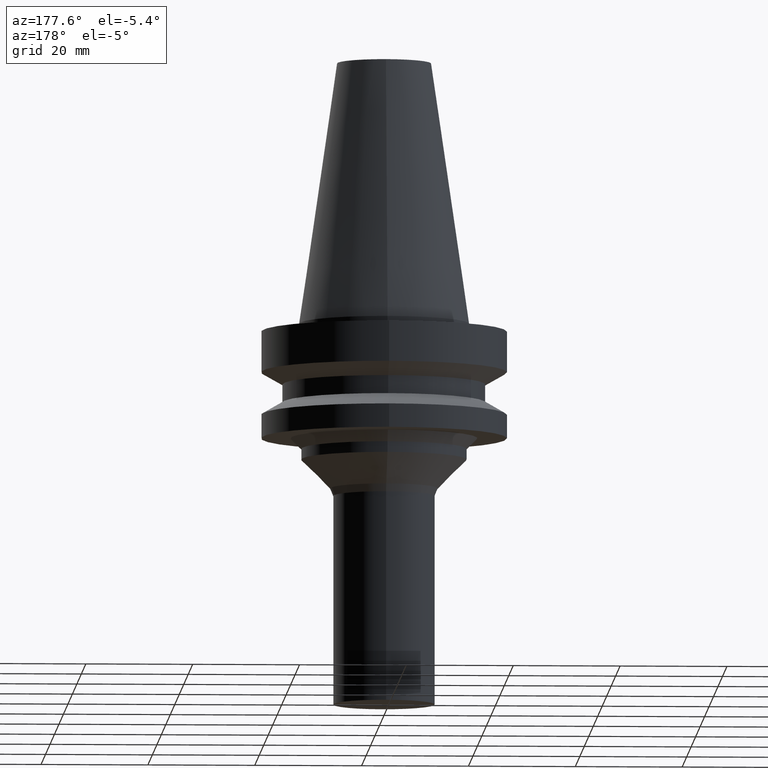
[diagram: clean part render]
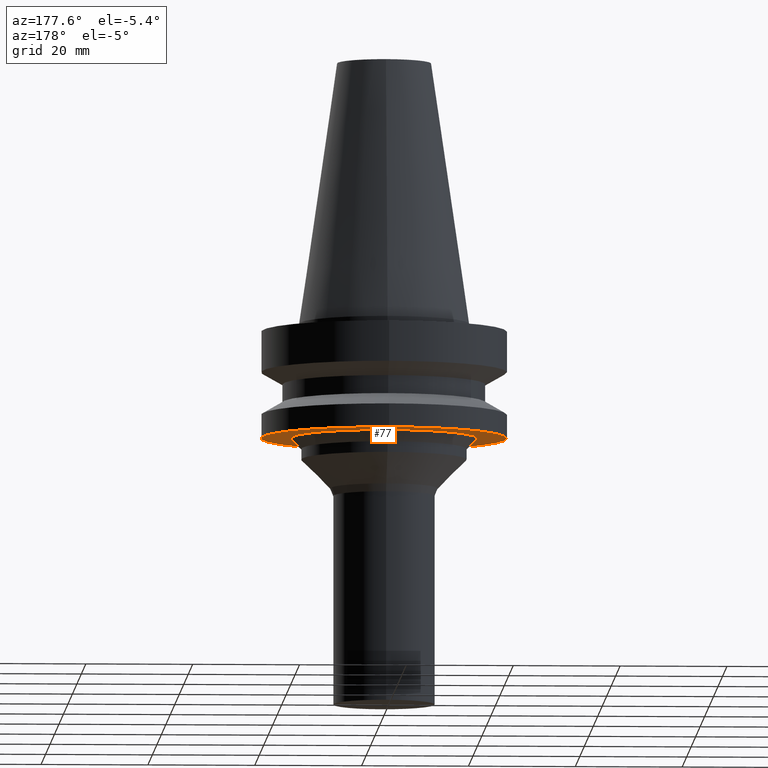
[diagram: same view with one face highlighted and labeled with its STEP entity id]
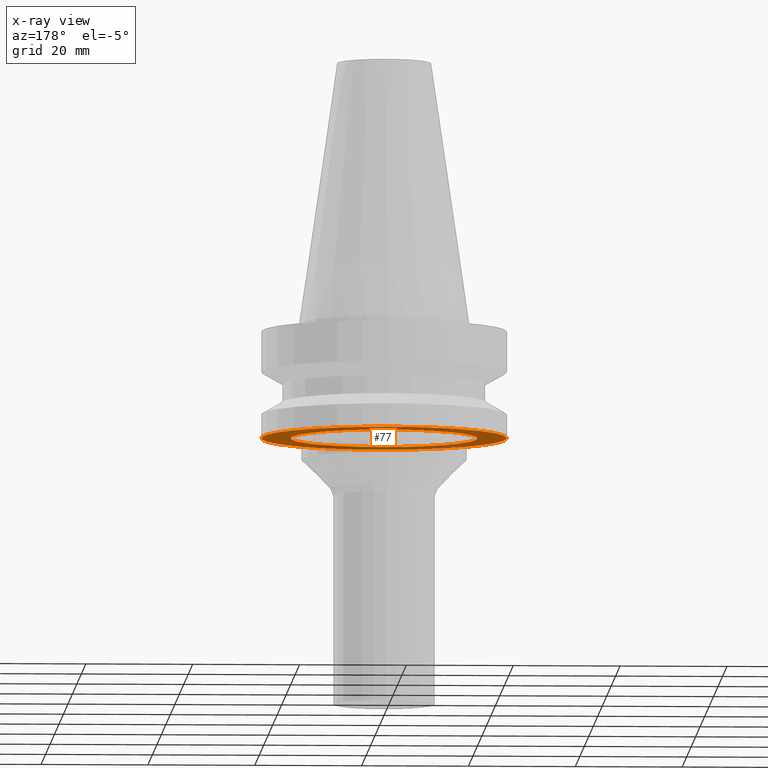
[diagram: x-ray of the same camera — body ghosted, the highlighted face saturated]
A machine part, auxiliary view. The second image highlights one B-rep face of the part: STEP entity #77.
The next image is the same camera in x-ray: the body ghosted, the highlighted face saturated — about 29% of this face is hidden behind the body in this view.
In plain terms, the highlighted planar face has unit normal (0, 0, -1).
Its self-contained STEP definition (entity closure, byte-faithful):
#77=ADVANCED_FACE('',(#98,#99),#100,.T.);
#98=FACE_BOUND('',#144,.T.);
#99=FACE_OUTER_BOUND('',#145,.T.);
#100=PLANE('',#146);
#144=EDGE_LOOP('',(#194));
#145=EDGE_LOOP('',(#195));
#146=AXIS2_PLACEMENT_3D('',#196,#197,#198);
#194=ORIENTED_EDGE('',*,*,#265,.F.);
#195=ORIENTED_EDGE('',*,*,#264,.T.);
#196=CARTESIAN_POINT('',(1.34711147906209E-015,20.25,-22.0));
#197=DIRECTION('',(6.12323399573677E-017,1.22464679914735E-016,-1.0));
#198=DIRECTION('',(-1.23259516440783E-032,1.0,1.22464679914735E-016));
#264=EDGE_CURVE('',#281,#281,#282,.T.);
#265=EDGE_CURVE('',#283,#283,#284,.T.);
#281=VERTEX_POINT('',#311);
#282=CIRCLE('',#312,23.0);
#283=VERTEX_POINT('',#313);
#284=CIRCLE('',#314,17.5);
#311=CARTESIAN_POINT('',(1.34711147906209E-015,23.0,-22.0));
#312=AXIS2_PLACEMENT_3D('',#343,#344,#345);
#313=CARTESIAN_POINT('',(1.34711147906209E-015,17.5,-22.0));
#314=AXIS2_PLACEMENT_3D('',#346,#347,#348);
#343=CARTESIAN_POINT('',(1.34711147906209E-015,2.69422295812418E-015,-22.0));
#344=DIRECTION('',(6.12323399573677E-017,1.22464679914735E-016,-1.0));
#345=DIRECTION('',(-1.23259516440783E-032,1.0,1.22464679914735E-016));
#346=CARTESIAN_POINT('',(1.34711147906209E-015,2.69422295812418E-015,-22.0));
#347=DIRECTION('',(6.12323399573677E-017,1.22464679914735E-016,-1.0));
#348=DIRECTION('',(-1.23259516440783E-032,1.0,1.22464679914735E-016));